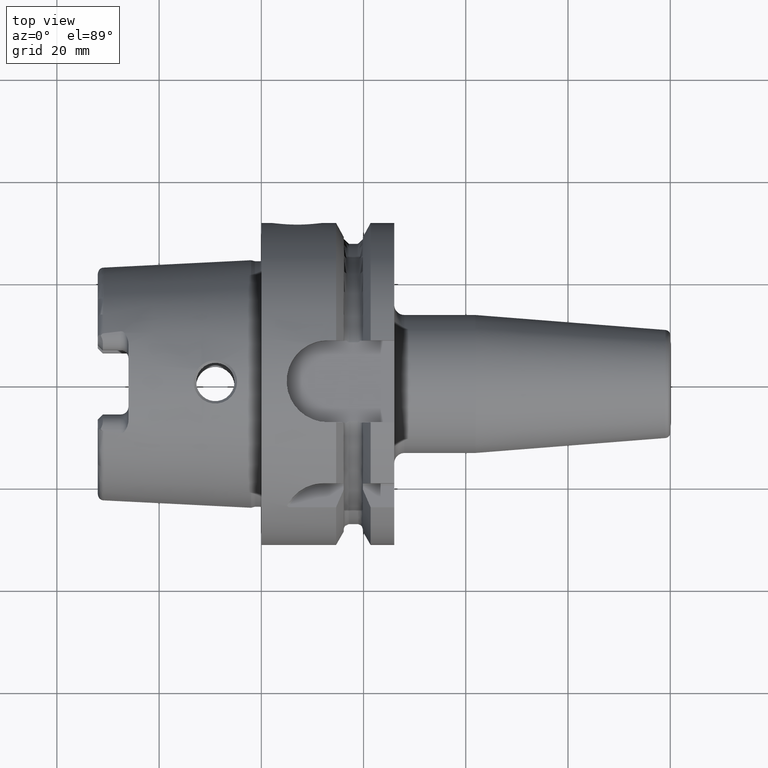
[diagram: clean part render]
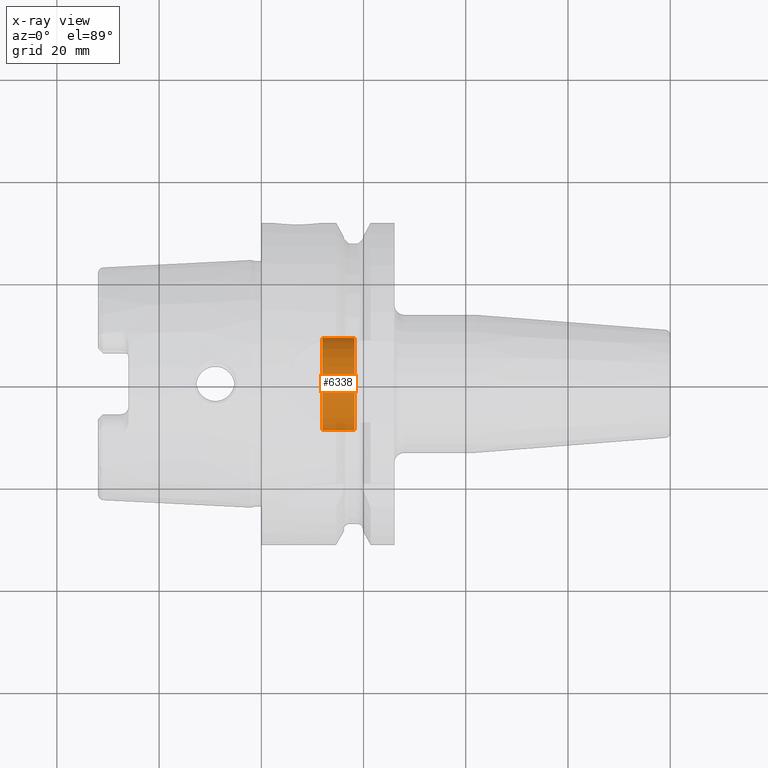
[diagram: x-ray — body ghosted, one internal face saturated and labeled with its STEP entity id]
A machine part, top view, then the same camera in x-ray: the body is ghosted and one INTERNAL B-rep face — a face not visible from any outside direction — is saturated and labeled: STEP entity #6338.
In plain terms, the highlighted cylindrical surface (partial cylindrical patch) has radius 9 mm, axis along (1, 0, 0).
Its self-contained STEP definition (entity closure, byte-faithful):
#6287=CARTESIAN_POINT('',(1.19625E1,0.E0,0.E0));
#6288=DIRECTION('',(-1.E0,0.E0,0.E0));
#6289=DIRECTION('',(0.E0,-1.E0,0.E0));
#6290=AXIS2_PLACEMENT_3D('',#6287,#6288,#6289);
#6292=DIRECTION('',(1.E0,0.E0,0.E0));
#6293=VECTOR('',#6292,6.261593106483E0);
#6294=CARTESIAN_POINT('',(1.19625E1,9.E0,0.E0));
#6295=LINE('',#6294,#6293);
#6296=CARTESIAN_POINT('',(1.822409310648E1,0.E0,0.E0));
#6297=DIRECTION('',(1.E0,0.E0,0.E0));
#6298=DIRECTION('',(0.E0,1.E0,0.E0));
#6299=AXIS2_PLACEMENT_3D('',#6296,#6297,#6298);
#6306=DIRECTION('',(1.E0,0.E0,0.E0));
#6307=VECTOR('',#6306,6.261593106483E0);
#6308=CARTESIAN_POINT('',(1.19625E1,-9.E0,0.E0));
#6309=LINE('',#6308,#6307);
#6315=CARTESIAN_POINT('',(1.822409310648E1,9.E0,0.E0));
#6316=CARTESIAN_POINT('',(1.822409310648E1,-9.E0,0.E0));
#6317=VERTEX_POINT('',#6315);
#6318=VERTEX_POINT('',#6316);
#6319=CARTESIAN_POINT('',(1.19625E1,9.E0,0.E0));
#6320=CARTESIAN_POINT('',(1.19625E1,-9.E0,0.E0));
#6321=VERTEX_POINT('',#6319);
#6322=VERTEX_POINT('',#6320);
#6323=CARTESIAN_POINT('',(-3.885261521357E1,0.E0,0.E0));
#6324=DIRECTION('',(1.E0,0.E0,0.E0));
#6325=DIRECTION('',(0.E0,1.E0,0.E0));
#6326=AXIS2_PLACEMENT_3D('',#6323,#6324,#6325);
#6327=CYLINDRICAL_SURFACE('',#6326,9.E0);
#6329=ORIENTED_EDGE('',*,*,#6328,.T.);
#6331=ORIENTED_EDGE('',*,*,#6330,.T.);
#6333=ORIENTED_EDGE('',*,*,#6332,.T.);
#6335=ORIENTED_EDGE('',*,*,#6334,.F.);
#6336=EDGE_LOOP('',(#6329,#6331,#6333,#6335));
#6337=FACE_OUTER_BOUND('',#6336,.F.);
#6338=ADVANCED_FACE('',(#6337),#6327,.T.);
#6291=CIRCLE('',#6290,9.E0);
#6300=CIRCLE('',#6299,9.E0);
#6328=EDGE_CURVE('',#6322,#6321,#6291,.T.);
#6330=EDGE_CURVE('',#6321,#6317,#6295,.T.);
#6332=EDGE_CURVE('',#6317,#6318,#6300,.T.);
#6334=EDGE_CURVE('',#6322,#6318,#6309,.T.);